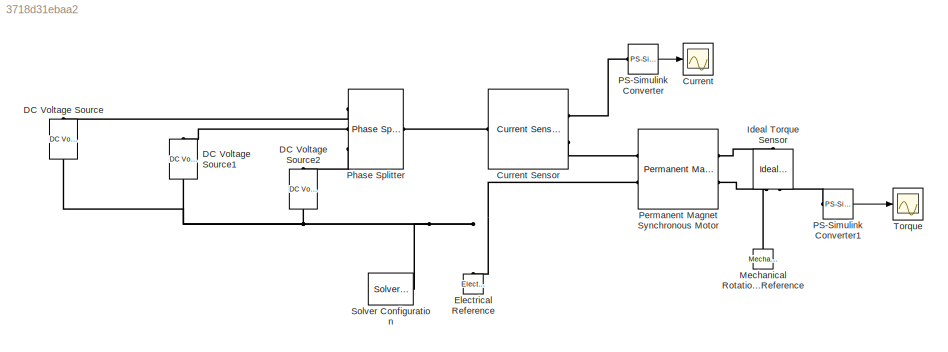
MODEL slx_3718d31ebaa2
KIND model
CONFIG AbsTol = auto
CONFIG FixedStep = auto
CONFIG MaxStep = auto
CONFIG MinStep = auto
CONFIG RelTol = 1e-6
CONFIG SampleTimeConstraint = Unconstrained
CONFIG Solver = VariableStepAuto
CONFIG SolverMode = Auto
CONFIG SolverName = VariableStepAuto
CONFIG StartTime = 0.0
CONFIG StopTime = 1
BLOCK [Scope] Current
  Ports = [1]
  ScopeSpecificationString = Simulink.scopes.TimeScopeBlockCfg('CurrentConfiguration', extmgr.ConfigurationSet(extmgr.Configuration('Core','General UI',true),extmgr.Configuration('Core','Source UI',true),extmgr.Configuration('Sources','WiredSimulink',true),extmgr.Configuration('Visuals','Time Domain',true,'SerializedDisplays',{struct('MinYLimReal','-232.0504','MaxYLimReal','400.81432','YLabelReal','','MinYLimMag',' 0.00000','...<+1556ch>
BLOCK [Reference] Current Sensor  REF=pe_lib/Sensors/Current Sensor
  Ports = [0, 0, 0, 0, 0, 1, 2]
  SourceBlock = pe_lib/Sensors/Current Sensor
  SourceType = Current Sensor
BLOCK [Reference] DC Voltage Source  REF=fl_lib/Electrical/Electrical Sources/DC Voltage Source
  Ports = [0, 0, 0, 0, 0, 1, 1]
  SourceBlock = fl_lib/Electrical/Electrical Sources/DC Voltage Source
  SourceType = DC Voltage Source
BLOCK [Reference] DC Voltage Source1  REF=fl_lib/Electrical/Electrical Sources/DC Voltage Source
  Ports = [0, 0, 0, 0, 0, 1, 1]
  SourceBlock = fl_lib/Electrical/Electrical Sources/DC Voltage Source
  SourceType = DC Voltage Source
BLOCK [Reference] DC Voltage Source2  REF=fl_lib/Electrical/Electrical Sources/DC Voltage Source
  Ports = [0, 0, 0, 0, 0, 1, 1]
  SourceBlock = fl_lib/Electrical/Electrical Sources/DC Voltage Source
  SourceType = DC Voltage Source
BLOCK [Reference] Electrical Reference  REF=fl_lib/Electrical/Electrical Elements/Electrical Reference
  Ports = [0, 0, 0, 0, 0, 1]
  SourceBlock = fl_lib/Electrical/Electrical Elements/Electrical Reference
  SourceType = Electrical Reference
BLOCK [Reference] Ideal Torque Sensor  REF=fl_lib/Mechanical/Mechanical Sensors/Ideal Torque Sensor
  Ports = [0, 0, 0, 0, 0, 1, 2]
  SourceBlock = fl_lib/Mechanical/Mechanical Sensors/Ideal Torque Sensor
  SourceType = Ideal Torque Sensor
BLOCK [Reference] Mechanical Rotational Reference  REF=fl_lib/Mechanical/Rotational Elements/Mechanical
Rotational Reference
  Ports = [0, 0, 0, 0, 0, 1]
  SourceBlock = fl_lib/Mechanical/Rotational Elements/Mechanical\nRotational Reference
  SourceType = Mechanical\nRotational Reference
BLOCK [Reference] PS-Simulink Converter  REF=nesl_utility/PS-Simulink
Converter
  Ports = [0, 1, 0, 0, 0, 1]
  SourceBlock = nesl_utility/PS-Simulink\nConverter
  SourceType = PS-Simulink\nConverter
BLOCK [Reference] PS-Simulink Converter1  REF=nesl_utility/PS-Simulink
Converter
  Ports = [0, 1, 0, 0, 0, 1]
  SourceBlock = nesl_utility/PS-Simulink\nConverter
  SourceType = PS-Simulink\nConverter
BLOCK [Reference] Permanent Magnet Synchronous Motor  REF=pe_lib/Machines/Permanent Magnet
Rotor/Permanent Magnet
Synchronous Motor
  Ports = [0, 0, 0, 0, 0, 2, 2]
  SourceBlock = pe_lib/Machines/Permanent Magnet\nRotor/Permanent Magnet\nSynchronous Motor
  SourceType = Permanent Magnet\nSynchronous Motor
BLOCK [Reference] Phase Splitter  REF=pe_lib/Connections/Phase Splitter
  Ports = [0, 0, 0, 0, 0, 1, 3]
  SourceBlock = pe_lib/Connections/Phase Splitter
  SourceType = Phase Splitter
BLOCK [Reference] Solver Configuration  REF=nesl_utility/Solver
Configuration
  Ports = [0, 0, 0, 0, 0, 0, 1]
  SourceBlock = nesl_utility/Solver\nConfiguration
  SourceType = Solver\nConfiguration
BLOCK [Scope] Torque
  Ports = [1]
  ScopeSpecificationString = Simulink.scopes.TimeScopeBlockCfg('CurrentConfiguration', extmgr.ConfigurationSet(extmgr.Configuration('Core','General UI',true),extmgr.Configuration('Core','Source UI',true),extmgr.Configuration('Sources','WiredSimulink',true,'DataLoggingVariableName','ScopeData1'),extmgr.Configuration('Visuals','Time Domain',true,'SerializedDisplays',{struct('MinYLimReal','-4.63827','MaxYLimReal','41.74439','YLa...<+1502ch>
LINE PS-Simulink Converter1:1 -> Torque:1
LINE PS-Simulink Converter:1 -> Current:1
PLINE Current Sensor:LConn1 -- Phase Splitter:LConn1
PLINE Current Sensor:RConn1 -- PS-Simulink Converter:LConn1
PLINE Current Sensor:RConn2 -- Permanent Magnet Synchronous Motor:LConn1
PLINE DC Voltage Source1:LConn1 -- Phase Splitter:RConn2
PNET net1: DC Voltage Source1:RConn1 -- DC Voltage Source2:RConn1 -- DC Voltage Source:RConn1 -- Electrical Reference:LConn1 -- Permanent Magnet Synchronous Motor:LConn2 -- Solver Configuration:RConn1
PLINE DC Voltage Source2:LConn1 -- Phase Splitter:RConn3
PLINE DC Voltage Source:LConn1 -- Phase Splitter:RConn1
PLINE Ideal Torque Sensor:LConn1 -- Permanent Magnet Synchronous Motor:RConn1
PNET net2: Ideal Torque Sensor:RConn1 -- Mechanical Rotational Reference:LConn1 -- Permanent Magnet Synchronous Motor:RConn2
PLINE Ideal Torque Sensor:RConn2 -- PS-Simulink Converter1:LConn1
note: PNET lines group multi-terminal physical nets as a canonical sorted terminal list (undirected conserving connections); 2-terminal nets keep the pairwise PLINE form
